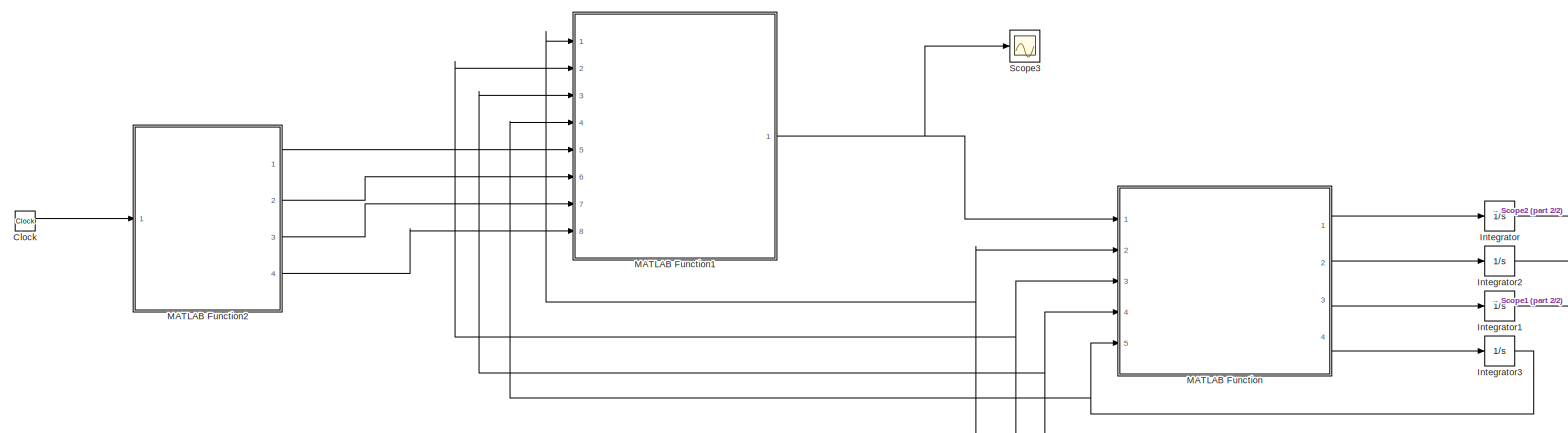
[diagram: root canvas - part 1/2, most of the canvas]
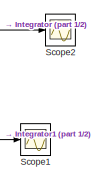
[diagram: root canvas - part 2/2, middle right region]
MODEL slx_f78c818b4700
KIND model
CONFIG AbsTol = auto
CONFIG EnableMultiTasking = off
CONFIG FixedStep = 0.0005
CONFIG MaxStep = auto
CONFIG MinStep = auto
CONFIG RelTol = 1e-3
CONFIG SampleTimeConstraint = Unconstrained
CONFIG Solver = ode5
CONFIG SolverName = ode5
CONFIG StartTime = 0.0
CONFIG StopTime = 20
WORKSPACE source: MAT-file member
WORKSPACE A: cell (value not decoded)
BLOCK [Clock] Clock
BLOCK [Integrator] Integrator
  InitialCondition = 0.002
  Ports = [1, 1]
BLOCK [Integrator] Integrator1
  InitialCondition = 0.001
  Ports = [1, 1]
BLOCK [Integrator] Integrator2
  Ports = [1, 1]
BLOCK [Integrator] Integrator3
  Ports = [1, 1]
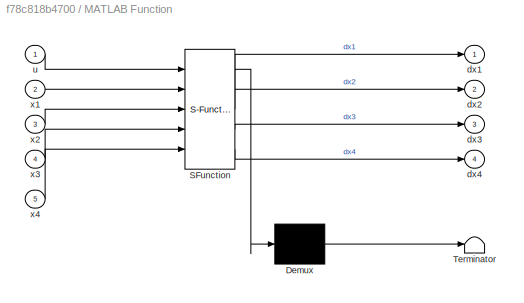
BLOCK [SubSystem] MATLAB Function
  ErrorFcn = Stateflow.Translate.translate
  PermitHierarchicalResolution = ExplicitOnly
  Ports = [5, 4]
  RequestExecContextInheritance = off
  SFBlockType = MATLAB Function
  TreatAsAtomicUnit = on
BLOCK [Demux] MATLAB Function/ Demux 
  Outputs = 1
  Ports = [1, 1]
BLOCK [S-Function] MATLAB Function/ SFunction 
  EnableBusSupport = on
  FunctionName = sf_sfun
  PortCounts = [5 5]
  Ports = [5, 5]
  SFcnIsStateOwnerBlock = off
  SFunctionDeploymentMode = off
  Tag = Stateflow S-Function TS_fuzzy_2017 2
BLOCK [Terminator] MATLAB Function/ Terminator 
BLOCK [Outport] MATLAB Function/dx1
BLOCK [Outport] MATLAB Function/dx2
  Port = 2
BLOCK [Outport] MATLAB Function/dx3
  Port = 3
BLOCK [Outport] MATLAB Function/dx4
  Port = 4
BLOCK [Inport] MATLAB Function/u
BLOCK [Inport] MATLAB Function/x1
  Port = 2
BLOCK [Inport] MATLAB Function/x2
  Port = 3
BLOCK [Inport] MATLAB Function/x3
  Port = 4
BLOCK [Inport] MATLAB Function/x4
  Port = 5
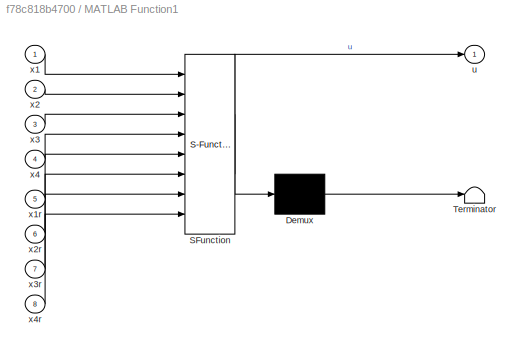
BLOCK [SubSystem] MATLAB Function1
  ErrorFcn = Stateflow.Translate.translate
  PermitHierarchicalResolution = ExplicitOnly
  Ports = [8, 1]
  RequestExecContextInheritance = off
  SFBlockType = MATLAB Function
  TreatAsAtomicUnit = on
BLOCK [Demux] MATLAB Function1/ Demux 
  Outputs = 1
  Ports = [1, 1]
BLOCK [S-Function] MATLAB Function1/ SFunction 
  EnableBusSupport = on
  FunctionName = sf_sfun
  PortCounts = [8 2]
  Ports = [8, 2]
  SFcnIsStateOwnerBlock = off
  SFunctionDeploymentMode = off
  Tag = Stateflow S-Function TS_fuzzy_2017 1
BLOCK [Terminator] MATLAB Function1/ Terminator 
BLOCK [Outport] MATLAB Function1/u
BLOCK [Inport] MATLAB Function1/x1
BLOCK [Inport] MATLAB Function1/x1r
  Port = 5
BLOCK [Inport] MATLAB Function1/x2
  Port = 2
BLOCK [Inport] MATLAB Function1/x2r
  Port = 6
BLOCK [Inport] MATLAB Function1/x3
  Port = 3
BLOCK [Inport] MATLAB Function1/x3r
  Port = 7
BLOCK [Inport] MATLAB Function1/x4
  Port = 4
BLOCK [Inport] MATLAB Function1/x4r
  Port = 8
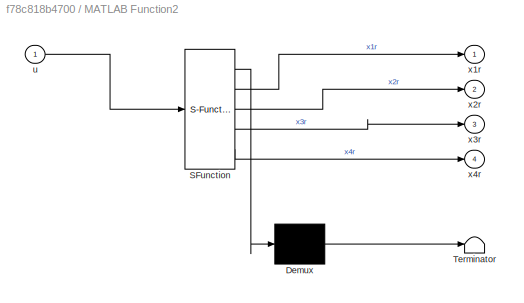
BLOCK [SubSystem] MATLAB Function2
  ErrorFcn = Stateflow.Translate.translate
  PermitHierarchicalResolution = ExplicitOnly
  Ports = [1, 4]
  RequestExecContextInheritance = off
  SFBlockType = MATLAB Function
  TreatAsAtomicUnit = on
BLOCK [Demux] MATLAB Function2/ Demux 
  Outputs = 1
  Ports = [1, 1]
BLOCK [S-Function] MATLAB Function2/ SFunction 
  EnableBusSupport = on
  FunctionName = sf_sfun
  PortCounts = [1 5]
  Ports = [1, 5]
  SFcnIsStateOwnerBlock = off
  SFunctionDeploymentMode = off
  Tag = Stateflow S-Function TS_fuzzy_2017 3
BLOCK [Terminator] MATLAB Function2/ Terminator 
BLOCK [Inport] MATLAB Function2/u
BLOCK [Outport] MATLAB Function2/x1r
BLOCK [Outport] MATLAB Function2/x2r
  Port = 2
BLOCK [Outport] MATLAB Function2/x3r
  Port = 3
BLOCK [Outport] MATLAB Function2/x4r
  Port = 4
BLOCK [Scope] Scope1
  Floating = off
  NumInputPorts = 1
  Ports = [1]
  ScopeSpecificationString = Simulink.scopes.TimeScopeBlockCfg('CurrentConfiguration', extmgr.ConfigurationSet(extmgr.Configuration('Core','General UI',true),extmgr.Configuration('Core','Source UI',true),extmgr.Configuration('Sources','WiredSimulink',true,'DataLoggingVariableName','ScopeData1'),extmgr.Configuration('Visuals','Time Domain',true,'SerializedDisplays',{struct('MinYLimReal','-0.16023','MaxYLimReal','0.07305','YLab...<+1370ch>
BLOCK [Scope] Scope2
  Floating = off
  NumInputPorts = 1
  Ports = [1]
  ScopeSpecificationString = Simulink.scopes.TimeScopeBlockCfg('CurrentConfiguration', extmgr.ConfigurationSet(extmgr.Configuration('Core','General UI',true),extmgr.Configuration('Core','Source UI',true),extmgr.Configuration('Sources','WiredSimulink',true),extmgr.Configuration('Visuals','Time Domain',true,'SerializedDisplays',{struct('MinYLimReal','-0.07275','MaxYLimReal','0.67475','YLabelReal','','MinYLimMag','0.00000','MaxY...<+1330ch>
BLOCK [Scope] Scope3
  Floating = off
  NumInputPorts = 1
  Ports = [1]
  ScopeSpecificationString = Simulink.scopes.TimeScopeBlockCfg('CurrentConfiguration', extmgr.ConfigurationSet(extmgr.Configuration('Core','General UI',true),extmgr.Configuration('Core','Source UI',true),extmgr.Configuration('Sources','WiredSimulink',true,'DataLoggingVariableName','ScopeData2'),extmgr.Configuration('Visuals','Time Domain',true,'SerializedDisplays',{struct('MinYLimReal','-229.6215','MaxYLimReal','1222.30958','...<+1391ch>
LINE Clock:1 -> MATLAB Function2:1
NET Integrator1:1 -> MATLAB Function1:3, MATLAB Function:4, Scope1:1
NET Integrator2:1 -> MATLAB Function1:2, MATLAB Function:3
NET Integrator3:1 -> MATLAB Function1:4, MATLAB Function:5
NET Integrator:1 -> MATLAB Function1:1, MATLAB Function:2, Scope2:1
NET MATLAB Function1:1 -> MATLAB Function:1, Scope3:1
LINE MATLAB Function2:1 -> MATLAB Function1:5
LINE MATLAB Function2:2 -> MATLAB Function1:6
LINE MATLAB Function2:3 -> MATLAB Function1:7
LINE MATLAB Function2:4 -> MATLAB Function1:8
LINE MATLAB Function:1 -> Integrator:1
LINE MATLAB Function:2 -> Integrator2:1
LINE MATLAB Function:3 -> Integrator1:1
LINE MATLAB Function:4 -> Integrator3:1
note: NET lines group one-source signal fan-out (src -> all destinations, sorted); 1:1 wires keep LINE
CHART MATLAB Function1 states=1 transitions=1
  STATE_LABEL 'eML_blk_kernel()'
  STATE_LABEL 'SCRIPT:\nfunction u = controller(x1,x2,x3,x4,x1r,x2r,x3r,x4r)\nM = 10;m=5;l=1;g=9.8;mu=0.2;\n z1_max = 1.0 ; z1_min =  0.096759181918094;\n z2_max = 1.0 ; z2_min = 0.965925826289068;\n z3_max = 1.0 ; z3_min = 0.988615929465369;\n z4_max = 0.203276002675801; z4_min = -0.203276002675801;\n \n z1 = 1/(M+m*sin(x3)^2);\n z2 = cos(x3);\n z3 = sin(x3)/x3;\n z4 = sin(x3)*x4;\n \n fx1_max = (z1 - z1_max)/(z1_max - z1_m...<+2067ch>'
CHART MATLAB Function states=1 transitions=1
  STATE_LABEL 'eML_blk_kernel()'
  STATE_LABEL 'SCRIPT:\nfunction [dx1,dx2,dx3,dx4] = plant_model(u,x1,x2,x3,x4)\nM = 10;m=5;l=1;g=9.8;mu=0.2;\nq = [x1;x2;x3;x4];\na11 = -mu/(M+m*sin(x3)^2); a12 = m*g*cos(x3)*sin(x3)/((M+m*sin(x3)^2)*x3);\na13 = m*l*x4*sin(x3)/(M+m*sin(x3)^2); a21 = mu*cos(x3)/(l*(M+m*sin(x3)^2));\na22 = -(M+m)*g*sin(x3)/(l*x3*(M+m*sin(x3)^2)); a23=-m*x4*sin(x3)*cos(x3)/(M+m*sin(x3)^2);\nb1 = 1/(M+m*sin(x3)^2); b2 = -cos(x3)/(l*(M+m*s...<+149ch>'
CHART MATLAB Function2 states=1 transitions=1
  STATE_LABEL 'eML_blk_kernel()'
  STATE_LABEL 'SCRIPT:\nfunction [x1r,x2r,x3r,x4r] = fcn(u)\n x1r = 0.6;\n x2r = 0;\n x3r = 0;\n x4r = 0;\n'
